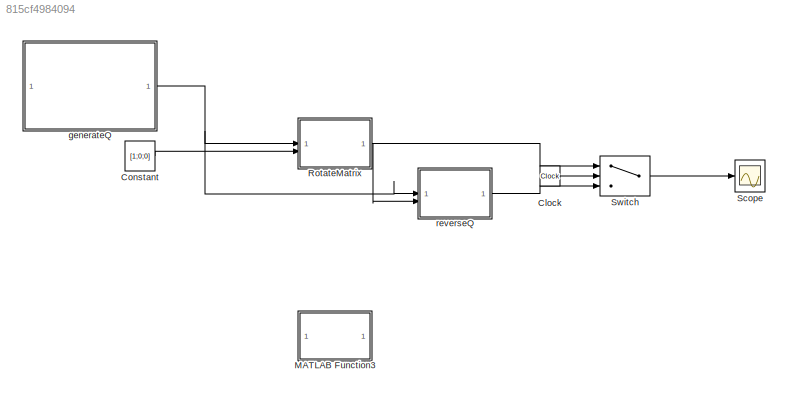
MODEL slx_815cf4984094
KIND model
CONFIG AbsTol = auto
CONFIG EnableMultiTasking = off
CONFIG FixedStep = auto
CONFIG MaxStep = auto
CONFIG MinStep = auto
CONFIG RelTol = 1e-3
CONFIG SampleTimeConstraint = Unconstrained
CONFIG SolverName = VariableStepAuto
CONFIG StartTime = 0.0
CONFIG StopTime = 30.0
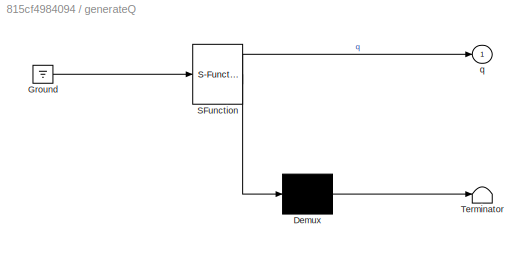
BLOCK [SubSystem]  generateQ
  ErrorFcn = Stateflow.Translate.translate
  PermitHierarchicalResolution = ExplicitOnly
  SFBlockType = MATLAB Function
  TreatAsAtomicUnit = on
BLOCK [Demux]  generateQ/ Demux 
  Outputs = 1
BLOCK [Ground]  generateQ/ Ground 
BLOCK [S-Function]  generateQ/ SFunction 
  EnableBusSupport = on
  FunctionName = sf_sfun
  PortCounts = [1 2]
  SFcnIsStateOwnerBlock = off
  SFunctionDeploymentMode = off
  Tag = Stateflow S-Function 2
BLOCK [Terminator]  generateQ/ Terminator 
BLOCK [Outport]  generateQ/q
BLOCK [Clock] Clock
BLOCK [Constant] Constant
  Value = [1;0;0]
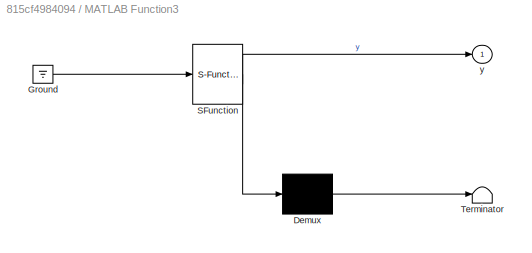
BLOCK [SubSystem] MATLAB Function3
  ErrorFcn = Stateflow.Translate.translate
  PermitHierarchicalResolution = ExplicitOnly
  SFBlockType = MATLAB Function
  TreatAsAtomicUnit = on
BLOCK [Demux] MATLAB Function3/ Demux 
  Outputs = 1
BLOCK [Ground] MATLAB Function3/ Ground 
BLOCK [S-Function] MATLAB Function3/ SFunction 
  EnableBusSupport = on
  FunctionName = sf_sfun
  PortCounts = [1 2]
  SFcnIsStateOwnerBlock = off
  SFunctionDeploymentMode = off
  Tag = Stateflow S-Function 4
BLOCK [Terminator] MATLAB Function3/ Terminator 
BLOCK [Outport] MATLAB Function3/y
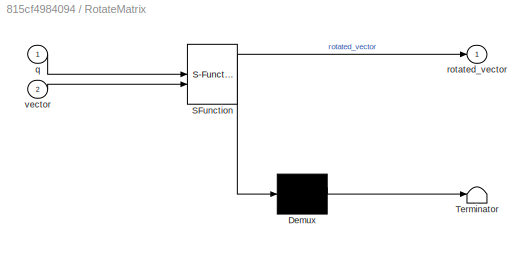
BLOCK [SubSystem] RotateMatrix
  ErrorFcn = Stateflow.Translate.translate
  PermitHierarchicalResolution = ExplicitOnly
  SFBlockType = MATLAB Function
  TreatAsAtomicUnit = on
BLOCK [Demux] RotateMatrix/ Demux 
  Outputs = 1
BLOCK [S-Function] RotateMatrix/ SFunction 
  EnableBusSupport = on
  FunctionName = sf_sfun
  PortCounts = [2 2]
  SFcnIsStateOwnerBlock = off
  SFunctionDeploymentMode = off
  Tag = Stateflow S-Function 1
BLOCK [Terminator] RotateMatrix/ Terminator 
BLOCK [Inport] RotateMatrix/q
BLOCK [Outport] RotateMatrix/rotated_vector
BLOCK [Inport] RotateMatrix/vector
  Port = 2
BLOCK [Scope] Scope
  Floating = off
  NumInputPorts = 1
  ScopeSpecificationString = Simulink.scopes.TimeScopeBlockCfg('CurrentConfiguration', extmgr.ConfigurationSet(extmgr.Configuration('Core','General UI',true),extmgr.Configuration('Core','Source UI',true),extmgr.Configuration('Sources','WiredSimulink',true),extmgr.Configuration('Visuals','Time Domain',true,'SerializedDisplays',{struct('MinYLimReal','-0.125','MaxYLimReal','1.125','YLabelReal','','MinYLimMag','0.00000','MaxYLimM...<+1391ch>
BLOCK [Switch] Switch
  Criteria = u2 > Threshold
  InputSameDT = off
  SaturateOnIntegerOverflow = off
  Threshold = 20
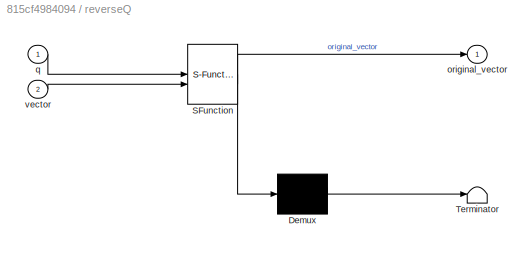
BLOCK [SubSystem] reverseQ
  ErrorFcn = Stateflow.Translate.translate
  PermitHierarchicalResolution = ExplicitOnly
  SFBlockType = MATLAB Function
  TreatAsAtomicUnit = on
BLOCK [Demux] reverseQ/ Demux 
  Outputs = 1
BLOCK [S-Function] reverseQ/ SFunction 
  EnableBusSupport = on
  FunctionName = sf_sfun
  PortCounts = [2 2]
  SFcnIsStateOwnerBlock = off
  SFunctionDeploymentMode = off
  Tag = Stateflow S-Function 3
BLOCK [Terminator] reverseQ/ Terminator 
BLOCK [Outport] reverseQ/original_vector
BLOCK [Inport] reverseQ/q
BLOCK [Inport] reverseQ/vector
  Port = 2
NET  generateQ:1 -> RotateMatrix:1, reverseQ:1
LINE Clock:1 -> Switch:2
LINE Constant:1 -> RotateMatrix:2
NET RotateMatrix:1 -> Switch:1, reverseQ:2
LINE Switch:1 -> Scope:1
LINE reverseQ:1 -> Switch:3
note: NET lines group one-source signal fan-out (src -> all destinations, sorted); 1:1 wires keep LINE
CHART  generateQ states=1 transitions=1
  STATE_LABEL 'eML_blk_kernel()'
  STATE_LABEL 'SCRIPT:\nfunction q = generateQuaternion()\n    % Define the angle in radians (45 degrees)\n    angle_radians = deg2rad(45);\n    % Fixed axis (e.g., z-axis)\n    axis = [0; 0; 1];\n    % Calculate the quaternion\n    q = [cos(angle_radians / 2); sin(angle_radians / 2) * axis];\nend\n'
CHART reverseQ states=1 transitions=1
  STATE_LABEL 'eML_blk_kernel()'
  STATE_LABEL 'SCRIPT:\nfunction original_vector = revertQuaternionRotation(q, vector)\n    % Extract quaternion components\n    w = q(1);\n    x = -q(2);\n    y = -q(3);\n    z = -q(4);\n    % Inverse quaternion (conjugate for unit quaternion)\n     % q_inv = [w; -x; -y; -z];\n    % Apply inverse rotation\n         % Quaternion rotation matrix\n    R = [1 - 2*y^2 - 2*z^2, 2*x*y - 2*z*w, 2*x*z + 2*y*w;\n         2*x*y + 2*z...<+156ch>'
CHART MATLAB Function3 states=1 transitions=1
  STATE_LABEL 'eML_blk_kernel()'
  STATE_LABEL 'SCRIPT:\nfunction y = random_counter()\n    persistent counter;\n    \n    % Initialize counter if not already initialized\n    if isempty(counter)\n        counter = 0;\n    end\n    \n    % Increment counter\n    counter = counter + 1;\n    \n    % Check if counter has reached a random interval between 0 and 20\n    if counter >= randi([10, 30])\n        % Reset counter to 0\n        counter = 0;\n    end\n    \n...<+21ch>'
CHART RotateMatrix states=1 transitions=1
  STATE_LABEL 'eML_blk_kernel()'
  STATE_LABEL 'SCRIPT:\nfunction rotated_vector = applyQuaternionRotation(q, vector)\n    % Extract quaternion components\n    w = q(1);\n    x = q(2);\n    y = q(3);\n    z = q(4);\n    % Quaternion rotation matrix\n    R = [1 - 2*y^2 - 2*z^2, 2*x*y - 2*z*w, 2*x*z + 2*y*w;\n         2*x*y + 2*z*w, 1 - 2*x^2 - 2*z^2, 2*y*z - 2*x*w;\n         2*x*z - 2*y*w, 2*y*z + 2*x*w, 1 - 2*x^2 - 2*y^2];\n    % Apply rotation\n    rotate...<+27ch>'
CHART  states=0 transitions=0
CHART  states=0 transitions=0
CHART  states=0 transitions=0
CHART  states=0 transitions=0
